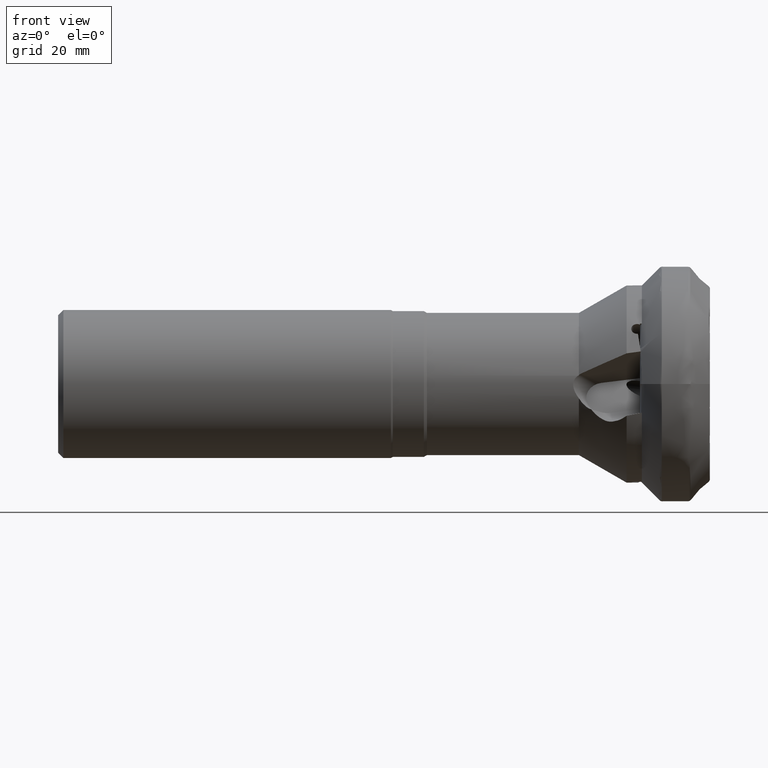
[diagram: clean part render]
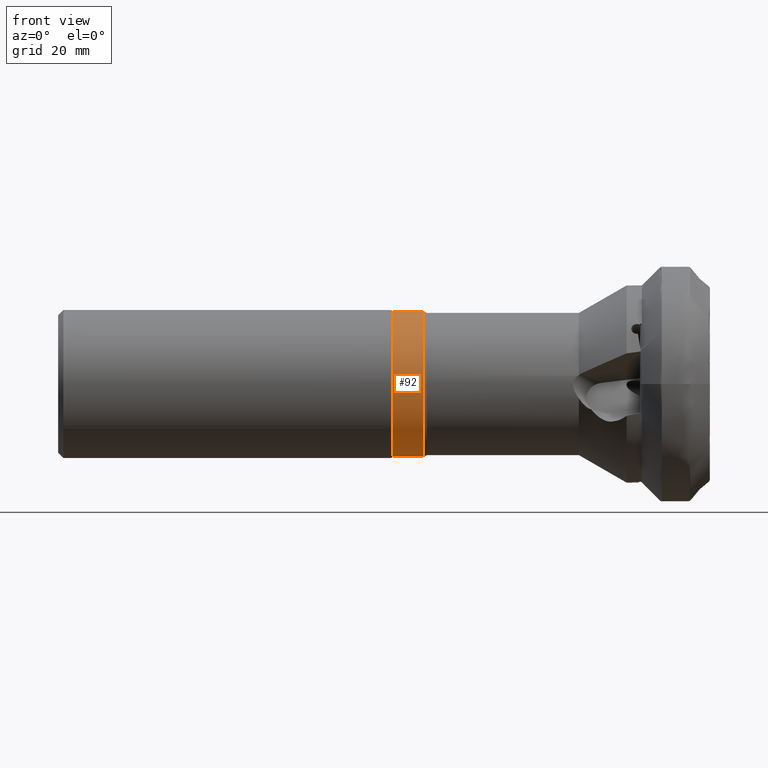
[diagram: same view with one face highlighted and labeled with its STEP entity id]
A machine part, front view. The second image highlights one B-rep face of the part: STEP entity #92.
In plain terms, the highlighted cylindrical surface (partial cylindrical patch) has radius 12.3 mm, axis along (1, -0, -0).
Its self-contained STEP definition (entity closure, byte-faithful):
#92 = ADVANCED_FACE ( 'NONE', ( #6407 ), #741, .T. ) ;
#120 = VERTEX_POINT ( 'NONE', #5703 ) ;
#382 = VERTEX_POINT ( 'NONE', #2850 ) ;
#741 = CYLINDRICAL_SURFACE ( 'NONE', #4829, 12.29999999999999400 ) ;
#824 = LINE ( 'NONE', #1458, #2229 ) ;
#884 = VECTOR ( 'NONE', #2918, 1000.000000000000000 ) ;
#1247 = DIRECTION ( 'NONE',  ( 1.000000000000000000, -0.0000000000000000000, -0.0000000000000000000 ) ) ;
#1407 = CARTESIAN_POINT ( 'NONE',  ( 0.0000000000000000000, 0.0000000000000000000, 0.0000000000000000000 ) ) ;
#1458 = CARTESIAN_POINT ( 'NONE',  ( 0.0000000000000000000, 0.0000000000000000000, -12.29999999999999400 ) ) ;
#1789 = ORIENTED_EDGE ( 'NONE', *, *, #1804, .T. ) ;
#1804 = EDGE_CURVE ( 'NONE', #120, #5817, #3353, .T. ) ;
#2040 = CIRCLE ( 'NONE', #3543, 12.29999999999999400 ) ;
#2130 = DIRECTION ( 'NONE',  ( 0.0000000000000000000, 0.0000000000000000000, -1.000000000000000000 ) ) ;
#2229 = VECTOR ( 'NONE', #3059, 1000.000000000000000 ) ;
#2286 = LINE ( 'NONE', #3985, #884 ) ;
#2850 = CARTESIAN_POINT ( 'NONE',  ( -47.39999999999999900, 1.506315562951243600E-015, -12.29999999999999400 ) ) ;
#2918 = DIRECTION ( 'NONE',  ( 1.000000000000000000, -0.0000000000000000000, -0.0000000000000000000 ) ) ;
#3014 = CARTESIAN_POINT ( 'NONE',  ( -52.63038475772934500, 1.518562030942717600E-015, -12.29999999999999400 ) ) ;
#3028 = DIRECTION ( 'NONE',  ( 0.0000000000000000000, 0.0000000000000000000, -1.000000000000000000 ) ) ;
#3059 = DIRECTION ( 'NONE',  ( 1.000000000000000000, -0.0000000000000000000, -0.0000000000000000000 ) ) ;
#3353 = CIRCLE ( 'NONE', #5962, 12.29999999999999400 ) ;
#3543 = AXIS2_PLACEMENT_3D ( 'NONE', #4406, #1247, #4962 ) ;
#3720 = EDGE_CURVE ( 'NONE', #120, #6402, #2286, .T. ) ;
#3767 = ORIENTED_EDGE ( 'NONE', *, *, #6569, .T. ) ;
#3985 = CARTESIAN_POINT ( 'NONE',  ( 0.0000000000000000000, 1.506315562951243600E-015, 12.29999999999999400 ) ) ;
#4184 = EDGE_CURVE ( 'NONE', #6402, #382, #2040, .T. ) ;
#4219 = CARTESIAN_POINT ( 'NONE',  ( -52.63038475772934500, 0.0000000000000000000, 0.0000000000000000000 ) ) ;
#4406 = CARTESIAN_POINT ( 'NONE',  ( -47.39999999999999900, 0.0000000000000000000, 0.0000000000000000000 ) ) ;
#4719 = EDGE_LOOP ( 'NONE', ( #5150, #1789, #3767, #6537 ) ) ;
#4829 = AXIS2_PLACEMENT_3D ( 'NONE', #1407, #6222, #3028 ) ;
#4962 = DIRECTION ( 'NONE',  ( 0.0000000000000000000, 0.0000000000000000000, -1.000000000000000000 ) ) ;
#5150 = ORIENTED_EDGE ( 'NONE', *, *, #3720, .F. ) ;
#5539 = CARTESIAN_POINT ( 'NONE',  ( -47.39999999999999900, 0.0000000000000000000, 12.29999999999999400 ) ) ;
#5703 = CARTESIAN_POINT ( 'NONE',  ( -52.63038475772934500, 0.0000000000000000000, 12.29999999999999400 ) ) ;
#5817 = VERTEX_POINT ( 'NONE', #3014 ) ;
#5962 = AXIS2_PLACEMENT_3D ( 'NONE', #4219, #6879, #2130 ) ;
#6222 = DIRECTION ( 'NONE',  ( 1.000000000000000000, -0.0000000000000000000, -0.0000000000000000000 ) ) ;
#6402 = VERTEX_POINT ( 'NONE', #5539 ) ;
#6407 = FACE_OUTER_BOUND ( 'NONE', #4719, .T. ) ;
#6537 = ORIENTED_EDGE ( 'NONE', *, *, #4184, .F. ) ;
#6569 = EDGE_CURVE ( 'NONE', #5817, #382, #824, .T. ) ;
#6879 = DIRECTION ( 'NONE',  ( 1.000000000000000000, -0.0000000000000000000, -0.0000000000000000000 ) ) ;